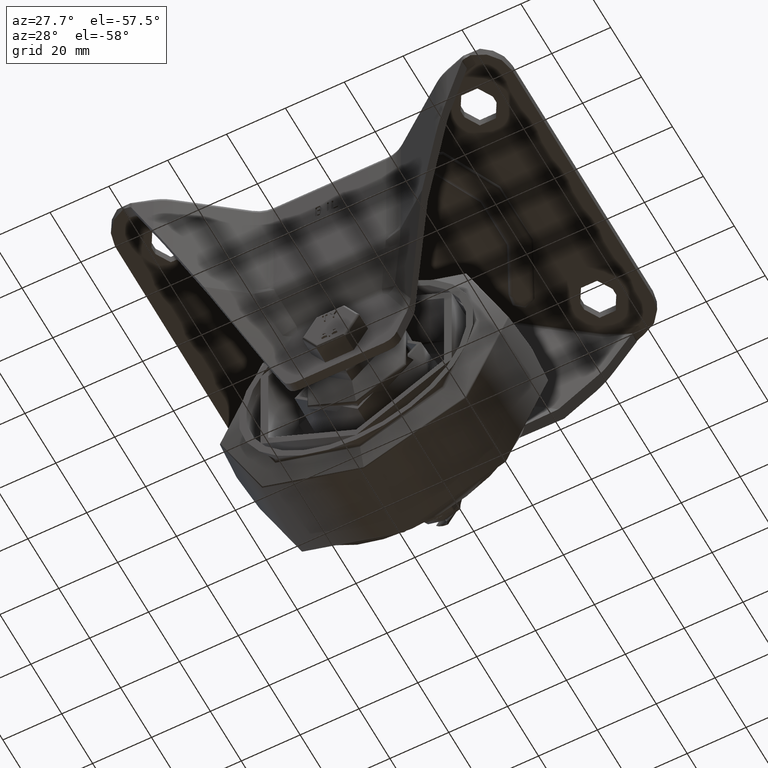
[diagram: clean part render]
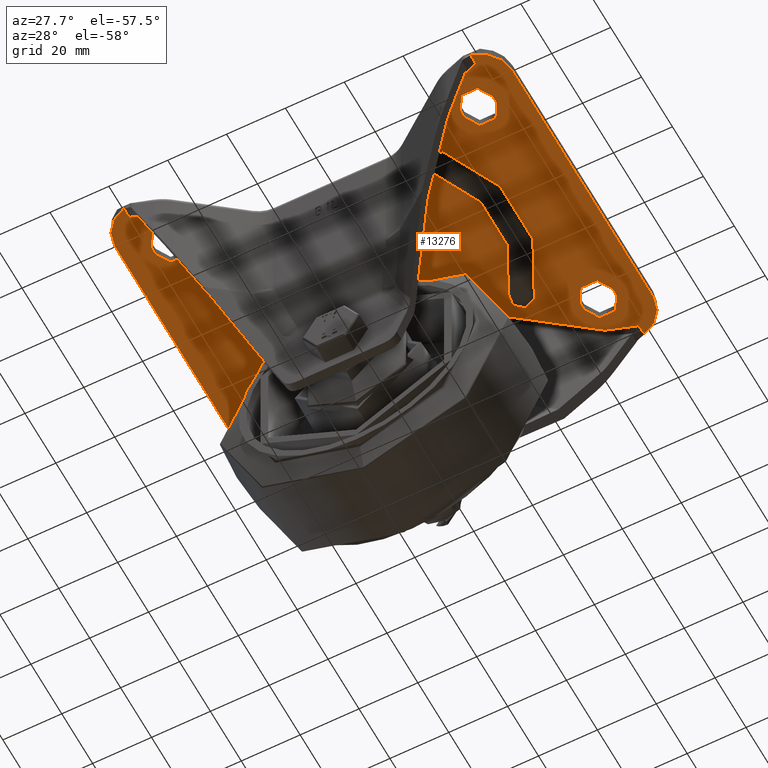
[diagram: same view with one face highlighted and labeled with its STEP entity id]
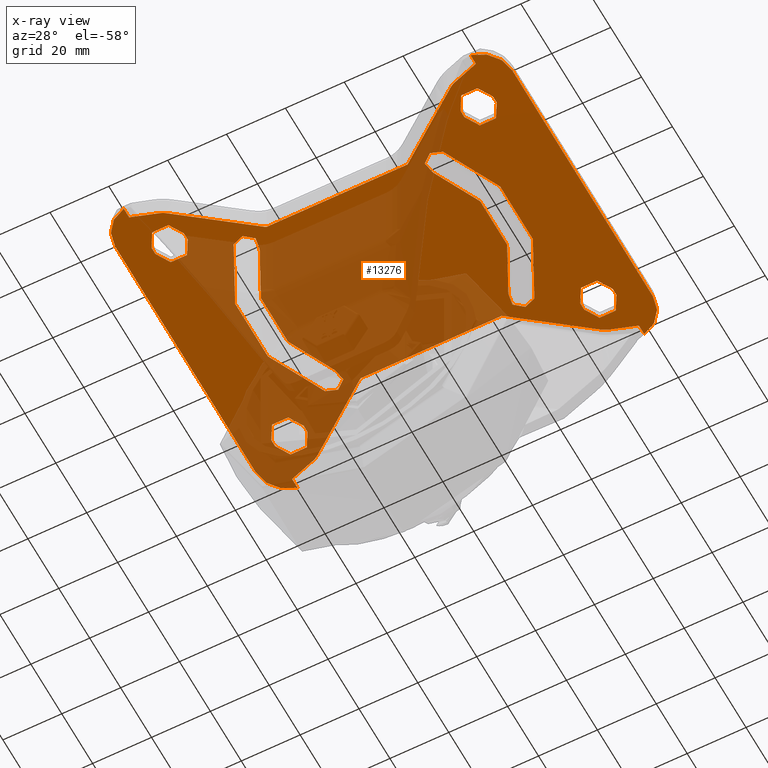
[diagram: x-ray of the same camera — body ghosted, the highlighted face saturated]
A machine part, auxiliary view. The second image highlights one B-rep face of the part: STEP entity #13276.
The next image is the same camera in x-ray: the body ghosted, the highlighted face saturated — about 47% of this face is hidden behind the body in this view.
In plain terms, the highlighted planar face has unit normal (0, 0, 1).
Its self-contained STEP definition (entity closure, byte-faithful):
#238=FACE_BOUND('',#2536,.T.);
#239=FACE_BOUND('',#2537,.T.);
#240=FACE_BOUND('',#2538,.T.);
#241=FACE_BOUND('',#2539,.T.);
#242=FACE_BOUND('',#2540,.T.);
#243=FACE_BOUND('',#2541,.T.);
#642=PLANE('',#14398);
#1717=FACE_OUTER_BOUND('',#2535,.T.);
#2535=EDGE_LOOP('',(#9426,#9427,#9428,#9429,#9430,#9431,#9432,#9433,#9434,
#9435,#9436,#9437,#9438,#9439,#9440,#9441,#9442,#9443,#9444,#9445,#9446,
#9447,#9448,#9449));
#2536=EDGE_LOOP('',(#9450,#9451,#9452,#9453));
#2537=EDGE_LOOP('',(#9454,#9455,#9456,#9457));
#2538=EDGE_LOOP('',(#9458,#9459,#9460,#9461));
#2539=EDGE_LOOP('',(#9462,#9463,#9464,#9465));
#2540=EDGE_LOOP('',(#9466,#9467,#9468,#9469));
#2541=EDGE_LOOP('',(#9470,#9471,#9472,#9473));
#3394=LINE('',#18599,#4253);
#3396=LINE('',#18606,#4255);
#3401=LINE('',#18656,#4260);
#3407=LINE('',#18689,#4266);
#3410=LINE('',#18708,#4269);
#3441=LINE('',#18923,#4300);
#3443=LINE('',#18929,#4302);
#3450=LINE('',#18984,#4309);
#3456=LINE('',#19017,#4315);
#3457=LINE('',#19032,#4316);
#3487=LINE('',#19335,#4346);
#3489=LINE('',#19342,#4348);
#3492=LINE('',#19354,#4351);
#3494=LINE('',#19361,#4353);
#3563=LINE('',#19834,#4422);
#3564=LINE('',#19837,#4423);
#3565=LINE('',#19842,#4424);
#3566=LINE('',#19845,#4425);
#3567=LINE('',#19850,#4426);
#3568=LINE('',#19853,#4427);
#3569=LINE('',#19858,#4428);
#3570=LINE('',#19861,#4429);
#3571=LINE('',#19866,#4430);
#3572=LINE('',#19869,#4431);
#4253=VECTOR('',#15363,1000.);
#4255=VECTOR('',#15371,1000.);
#4260=VECTOR('',#15394,1000.);
#4266=VECTOR('',#15416,1000.);
#4269=VECTOR('',#15425,1000.);
#4300=VECTOR('',#15554,1000.);
#4302=VECTOR('',#15562,1000.);
#4309=VECTOR('',#15591,1000.);
#4315=VECTOR('',#15613,1000.);
#4316=VECTOR('',#15616,1000.);
#4346=VECTOR('',#15872,1000.);
#4348=VECTOR('',#15880,1000.);
#4351=VECTOR('',#15893,1000.);
#4353=VECTOR('',#15901,1000.);
#4422=VECTOR('',#16020,1000.);
#4423=VECTOR('',#16025,1000.);
#4424=VECTOR('',#16028,1000.);
#4425=VECTOR('',#16031,1000.);
#4426=VECTOR('',#16034,1000.);
#4427=VECTOR('',#16037,1000.);
#4428=VECTOR('',#16040,1000.);
#4429=VECTOR('',#16043,1000.);
#4430=VECTOR('',#16046,1000.);
#4431=VECTOR('',#16049,1000.);
#5138=CIRCLE('',#14217,11.);
#5140=CIRCLE('',#14220,11.);
#5172=CIRCLE('',#14290,11.);
#5174=CIRCLE('',#14293,11.);
#5205=CIRCLE('',#14335,46.25);
#5207=CIRCLE('',#14338,4.);
#5210=CIRCLE('',#14342,38.25);
#5213=CIRCLE('',#14346,4.);
#5215=CIRCLE('',#14349,46.25);
#5221=CIRCLE('',#14356,4.);
#5224=CIRCLE('',#14360,38.25);
#5226=CIRCLE('',#14363,4.);
#5231=CIRCLE('',#14399,7.5);
#5232=CIRCLE('',#14400,7.5);
#5233=CIRCLE('',#14401,7.5);
#5234=CIRCLE('',#14402,7.5);
#5235=CIRCLE('',#14403,5.5);
#5236=CIRCLE('',#14404,5.5);
#5237=CIRCLE('',#14405,5.5);
#5238=CIRCLE('',#14406,5.5);
#5239=CIRCLE('',#14407,5.5);
#5240=CIRCLE('',#14408,5.5);
#5241=CIRCLE('',#14409,5.5);
#5242=CIRCLE('',#14410,5.5);
#5618=VERTEX_POINT('',#18594);
#5619=VERTEX_POINT('',#18597);
#5621=VERTEX_POINT('',#18604);
#5631=VERTEX_POINT('',#18653);
#5639=VERTEX_POINT('',#18676);
#5641=VERTEX_POINT('',#18688);
#5642=VERTEX_POINT('',#18693);
#5644=VERTEX_POINT('',#18706);
#5688=VERTEX_POINT('',#18869);
#5689=VERTEX_POINT('',#18871);
#5693=VERTEX_POINT('',#18888);
#5694=VERTEX_POINT('',#18897);
#5704=VERTEX_POINT('',#18920);
#5705=VERTEX_POINT('',#18922);
#5706=VERTEX_POINT('',#18928);
#5717=VERTEX_POINT('',#18979);
#5725=VERTEX_POINT('',#19002);
#5727=VERTEX_POINT('',#19015);
#5728=VERTEX_POINT('',#19019);
#5730=VERTEX_POINT('',#19031);
#5775=VERTEX_POINT('',#19197);
#5776=VERTEX_POINT('',#19206);
#5778=VERTEX_POINT('',#19212);
#5779=VERTEX_POINT('',#19214);
#5803=VERTEX_POINT('',#19290);
#5804=VERTEX_POINT('',#19292);
#5805=VERTEX_POINT('',#19296);
#5807=VERTEX_POINT('',#19302);
#5809=VERTEX_POINT('',#19311);
#5810=VERTEX_POINT('',#19312);
#5814=VERTEX_POINT('',#19322);
#5816=VERTEX_POINT('',#19328);
#5888=VERTEX_POINT('',#19838);
#5889=VERTEX_POINT('',#19839);
#5890=VERTEX_POINT('',#19841);
#5891=VERTEX_POINT('',#19843);
#5892=VERTEX_POINT('',#19846);
#5893=VERTEX_POINT('',#19847);
#5894=VERTEX_POINT('',#19849);
#5895=VERTEX_POINT('',#19851);
#5896=VERTEX_POINT('',#19854);
#5897=VERTEX_POINT('',#19855);
#5898=VERTEX_POINT('',#19857);
#5899=VERTEX_POINT('',#19859);
#5900=VERTEX_POINT('',#19862);
#5901=VERTEX_POINT('',#19863);
#5902=VERTEX_POINT('',#19865);
#5903=VERTEX_POINT('',#19867);
#6941=EDGE_CURVE('',#5619,#5618,#3394,.T.);
#6945=EDGE_CURVE('',#5621,#5619,#3396,.T.);
#6959=EDGE_CURVE('',#5631,#5621,#3401,.T.);
#6971=EDGE_CURVE('',#5641,#5639,#3407,.T.);
#6977=EDGE_CURVE('',#5644,#5642,#3410,.T.);
#7032=EDGE_CURVE('',#5688,#5689,#5138,.T.);
#7038=EDGE_CURVE('',#5694,#5693,#5140,.T.);
#7049=EDGE_CURVE('',#5705,#5704,#3441,.T.);
#7053=EDGE_CURVE('',#5706,#5705,#3443,.T.);
#7071=EDGE_CURVE('',#5717,#5706,#3450,.T.);
#7083=EDGE_CURVE('',#5725,#5727,#3456,.T.);
#7085=EDGE_CURVE('',#5728,#5730,#3457,.T.);
#7143=EDGE_CURVE('',#5776,#5775,#5172,.T.);
#7147=EDGE_CURVE('',#5778,#5779,#5174,.T.);
#7182=EDGE_CURVE('',#5804,#5803,#5205,.T.);
#7184=EDGE_CURVE('',#5803,#5805,#5207,.T.);
#7187=EDGE_CURVE('',#5805,#5807,#5210,.T.);
#7190=EDGE_CURVE('',#5807,#5804,#5213,.T.);
#7192=EDGE_CURVE('',#5809,#5810,#5215,.T.);
#7198=EDGE_CURVE('',#5810,#5814,#5221,.T.);
#7201=EDGE_CURVE('',#5814,#5816,#5224,.T.);
#7203=EDGE_CURVE('',#5816,#5809,#5226,.T.);
#7204=EDGE_CURVE('',#5725,#5775,#3487,.T.);
#7208=EDGE_CURVE('',#5779,#5728,#3489,.T.);
#7215=EDGE_CURVE('',#5689,#5639,#3492,.T.);
#7219=EDGE_CURVE('',#5642,#5693,#3494,.T.);
#7314=EDGE_CURVE('',#5618,#5644,#5231,.T.);
#7315=EDGE_CURVE('',#5641,#5631,#5232,.T.);
#7316=EDGE_CURVE('',#5776,#5688,#3563,.T.);
#7317=EDGE_CURVE('',#5727,#5717,#5233,.T.);
#7318=EDGE_CURVE('',#5704,#5730,#5234,.T.);
#7319=EDGE_CURVE('',#5694,#5778,#3564,.T.);
#7320=EDGE_CURVE('',#5888,#5889,#5235,.T.);
#7321=EDGE_CURVE('',#5889,#5890,#3565,.T.);
#7322=EDGE_CURVE('',#5890,#5891,#5236,.T.);
#7323=EDGE_CURVE('',#5891,#5888,#3566,.T.);
#7324=EDGE_CURVE('',#5892,#5893,#5237,.T.);
#7325=EDGE_CURVE('',#5894,#5892,#3567,.T.);
#7326=EDGE_CURVE('',#5895,#5894,#5238,.T.);
#7327=EDGE_CURVE('',#5893,#5895,#3568,.T.);
#7328=EDGE_CURVE('',#5896,#5897,#5239,.T.);
#7329=EDGE_CURVE('',#5898,#5896,#3569,.T.);
#7330=EDGE_CURVE('',#5899,#5898,#5240,.T.);
#7331=EDGE_CURVE('',#5897,#5899,#3570,.T.);
#7332=EDGE_CURVE('',#5900,#5901,#5241,.T.);
#7333=EDGE_CURVE('',#5901,#5902,#3571,.T.);
#7334=EDGE_CURVE('',#5902,#5903,#5242,.T.);
#7335=EDGE_CURVE('',#5903,#5900,#3572,.T.);
#9426=ORIENTED_EDGE('',*,*,#7219,.F.);
#9427=ORIENTED_EDGE('',*,*,#6977,.F.);
#9428=ORIENTED_EDGE('',*,*,#7314,.F.);
#9429=ORIENTED_EDGE('',*,*,#6941,.F.);
#9430=ORIENTED_EDGE('',*,*,#6945,.F.);
#9431=ORIENTED_EDGE('',*,*,#6959,.F.);
#9432=ORIENTED_EDGE('',*,*,#7315,.F.);
#9433=ORIENTED_EDGE('',*,*,#6971,.T.);
#9434=ORIENTED_EDGE('',*,*,#7215,.F.);
#9435=ORIENTED_EDGE('',*,*,#7032,.F.);
#9436=ORIENTED_EDGE('',*,*,#7316,.F.);
#9437=ORIENTED_EDGE('',*,*,#7143,.T.);
#9438=ORIENTED_EDGE('',*,*,#7204,.F.);
#9439=ORIENTED_EDGE('',*,*,#7083,.T.);
#9440=ORIENTED_EDGE('',*,*,#7317,.T.);
#9441=ORIENTED_EDGE('',*,*,#7071,.T.);
#9442=ORIENTED_EDGE('',*,*,#7053,.T.);
#9443=ORIENTED_EDGE('',*,*,#7049,.T.);
#9444=ORIENTED_EDGE('',*,*,#7318,.T.);
#9445=ORIENTED_EDGE('',*,*,#7085,.F.);
#9446=ORIENTED_EDGE('',*,*,#7208,.F.);
#9447=ORIENTED_EDGE('',*,*,#7147,.F.);
#9448=ORIENTED_EDGE('',*,*,#7319,.F.);
#9449=ORIENTED_EDGE('',*,*,#7038,.T.);
#9450=ORIENTED_EDGE('',*,*,#7190,.T.);
#9451=ORIENTED_EDGE('',*,*,#7182,.T.);
#9452=ORIENTED_EDGE('',*,*,#7184,.T.);
#9453=ORIENTED_EDGE('',*,*,#7187,.T.);
#9454=ORIENTED_EDGE('',*,*,#7198,.T.);
#9455=ORIENTED_EDGE('',*,*,#7201,.T.);
#9456=ORIENTED_EDGE('',*,*,#7203,.T.);
#9457=ORIENTED_EDGE('',*,*,#7192,.T.);
#9458=ORIENTED_EDGE('',*,*,#7320,.T.);
#9459=ORIENTED_EDGE('',*,*,#7321,.T.);
#9460=ORIENTED_EDGE('',*,*,#7322,.T.);
#9461=ORIENTED_EDGE('',*,*,#7323,.T.);
#9462=ORIENTED_EDGE('',*,*,#7324,.F.);
#9463=ORIENTED_EDGE('',*,*,#7325,.F.);
#9464=ORIENTED_EDGE('',*,*,#7326,.F.);
#9465=ORIENTED_EDGE('',*,*,#7327,.F.);
#9466=ORIENTED_EDGE('',*,*,#7328,.F.);
#9467=ORIENTED_EDGE('',*,*,#7329,.F.);
#9468=ORIENTED_EDGE('',*,*,#7330,.F.);
#9469=ORIENTED_EDGE('',*,*,#7331,.F.);
#9470=ORIENTED_EDGE('',*,*,#7332,.T.);
#9471=ORIENTED_EDGE('',*,*,#7333,.T.);
#9472=ORIENTED_EDGE('',*,*,#7334,.T.);
#9473=ORIENTED_EDGE('',*,*,#7335,.T.);
#13276=ADVANCED_FACE('',(#1717,#238,#239,#240,#241,#242,#243),#642,.F.);
#14217=AXIS2_PLACEMENT_3D('',#18872,#15523,#15524);
#14220=AXIS2_PLACEMENT_3D('',#18898,#15531,#15532);
#14290=AXIS2_PLACEMENT_3D('',#19207,#15717,#15718);
#14293=AXIS2_PLACEMENT_3D('',#19215,#15725,#15726);
#14335=AXIS2_PLACEMENT_3D('',#19293,#15812,#15813);
#14338=AXIS2_PLACEMENT_3D('',#19297,#15818,#15819);
#14342=AXIS2_PLACEMENT_3D('',#19303,#15826,#15827);
#14346=AXIS2_PLACEMENT_3D('',#19308,#15834,#15835);
#14349=AXIS2_PLACEMENT_3D('',#19313,#15840,#15841);
#14356=AXIS2_PLACEMENT_3D('',#19324,#15854,#15855);
#14360=AXIS2_PLACEMENT_3D('',#19330,#15862,#15863);
#14363=AXIS2_PLACEMENT_3D('',#19333,#15868,#15869);
#14398=AXIS2_PLACEMENT_3D('',#19831,#16014,#16015);
#14399=AXIS2_PLACEMENT_3D('',#19832,#16016,#16017);
#14400=AXIS2_PLACEMENT_3D('',#19833,#16018,#16019);
#14401=AXIS2_PLACEMENT_3D('',#19835,#16021,#16022);
#14402=AXIS2_PLACEMENT_3D('',#19836,#16023,#16024);
#14403=AXIS2_PLACEMENT_3D('',#19840,#16026,#16027);
#14404=AXIS2_PLACEMENT_3D('',#19844,#16029,#16030);
#14405=AXIS2_PLACEMENT_3D('',#19848,#16032,#16033);
#14406=AXIS2_PLACEMENT_3D('',#19852,#16035,#16036);
#14407=AXIS2_PLACEMENT_3D('',#19856,#16038,#16039);
#14408=AXIS2_PLACEMENT_3D('',#19860,#16041,#16042);
#14409=AXIS2_PLACEMENT_3D('',#19864,#16044,#16045);
#14410=AXIS2_PLACEMENT_3D('',#19868,#16047,#16048);
#15363=DIRECTION('',(0.798041368930957,-0.602602666335625,0.));
#15371=DIRECTION('',(1.,0.,0.));
#15394=DIRECTION('',(0.798041368930957,0.602602666335625,0.));
#15416=DIRECTION('',(-0.948683298050512,-0.316227766016842,0.));
#15425=DIRECTION('',(0.948683298050512,-0.316227766016842,0.));
#15523=DIRECTION('center_axis',(0.,0.,1.));
#15524=DIRECTION('ref_axis',(-0.707106781186547,-0.707106781186548,0.));
#15531=DIRECTION('center_axis',(0.,0.,-1.));
#15532=DIRECTION('ref_axis',(0.707106781186547,-0.707106781186548,0.));
#15554=DIRECTION('',(0.798041368930957,0.602602666335625,0.));
#15562=DIRECTION('',(1.,0.,0.));
#15591=DIRECTION('',(0.798041368930957,-0.602602666335625,0.));
#15613=DIRECTION('',(0.948683298050512,-0.316227766016842,0.));
#15616=DIRECTION('',(-0.948683298050512,-0.316227766016842,0.));
#15717=DIRECTION('center_axis',(0.,0.,-1.));
#15718=DIRECTION('ref_axis',(-0.707106781186547,0.707106781186548,0.));
#15725=DIRECTION('center_axis',(0.,0.,1.));
#15726=DIRECTION('ref_axis',(0.707106781186547,0.707106781186548,0.));
#15812=DIRECTION('center_axis',(0.,0.,1.));
#15813=DIRECTION('ref_axis',(1.,-2.44929359829471E-16,0.));
#15818=DIRECTION('center_axis',(0.,0.,1.));
#15819=DIRECTION('ref_axis',(-0.639053254437868,0.769162491280204,0.));
#15826=DIRECTION('center_axis',(0.,0.,-1.));
#15827=DIRECTION('ref_axis',(1.,-2.44929359829471E-16,0.));
#15834=DIRECTION('center_axis',(0.,0.,1.));
#15835=DIRECTION('ref_axis',(-0.63905325443787,-0.769162491280202,0.));
#15840=DIRECTION('center_axis',(0.,0.,1.));
#15841=DIRECTION('ref_axis',(-1.,-3.21624529935327E-16,0.));
#15854=DIRECTION('center_axis',(0.,0.,1.));
#15855=DIRECTION('ref_axis',(0.639053254437871,-0.769162491280201,0.));
#15862=DIRECTION('center_axis',(0.,0.,-1.));
#15863=DIRECTION('ref_axis',(-1.,-3.21624529935327E-16,0.));
#15868=DIRECTION('center_axis',(0.,0.,1.));
#15869=DIRECTION('ref_axis',(0.63905325443787,0.769162491280202,0.));
#15872=DIRECTION('',(0.,1.,0.));
#15880=DIRECTION('',(0.,-1.,0.));
#15893=DIRECTION('',(0.,1.,0.));
#15901=DIRECTION('',(0.,-1.,0.));
#16014=DIRECTION('center_axis',(0.,0.,1.));
#16015=DIRECTION('ref_axis',(1.,0.,0.));
#16016=DIRECTION('center_axis',(0.,0.,1.));
#16017=DIRECTION('ref_axis',(-0.46554869622465,-0.885022266072175,0.));
#16018=DIRECTION('center_axis',(0.,0.,1.));
#16019=DIRECTION('ref_axis',(0.46554869622465,-0.885022266072176,0.));
#16020=DIRECTION('',(0.,-1.,0.));
#16021=DIRECTION('center_axis',(0.,0.,-1.));
#16022=DIRECTION('ref_axis',(0.46554869622465,0.885022266072176,0.));
#16023=DIRECTION('center_axis',(0.,0.,-1.));
#16024=DIRECTION('ref_axis',(-0.46554869622465,0.885022266072175,0.));
#16025=DIRECTION('',(0.,1.,0.));
#16026=DIRECTION('center_axis',(0.,0.,1.));
#16027=DIRECTION('ref_axis',(1.,0.,0.));
#16028=DIRECTION('',(0.,-1.,0.));
#16029=DIRECTION('center_axis',(0.,0.,1.));
#16030=DIRECTION('ref_axis',(1.,0.,0.));
#16031=DIRECTION('',(0.,1.,0.));
#16032=DIRECTION('center_axis',(0.,0.,-1.));
#16033=DIRECTION('ref_axis',(-1.,0.,0.));
#16034=DIRECTION('',(0.,1.,0.));
#16035=DIRECTION('center_axis',(0.,0.,-1.));
#16036=DIRECTION('ref_axis',(-1.,0.,0.));
#16037=DIRECTION('',(0.,-1.,0.));
#16038=DIRECTION('center_axis',(0.,0.,-1.));
#16039=DIRECTION('ref_axis',(1.,0.,0.));
#16040=DIRECTION('',(0.,-1.,0.));
#16041=DIRECTION('center_axis',(0.,0.,-1.));
#16042=DIRECTION('ref_axis',(1.,0.,0.));
#16043=DIRECTION('',(0.,1.,0.));
#16044=DIRECTION('center_axis',(0.,0.,1.));
#16045=DIRECTION('ref_axis',(-1.,0.,0.));
#16046=DIRECTION('',(0.,1.,0.));
#16047=DIRECTION('center_axis',(0.,0.,1.));
#16048=DIRECTION('ref_axis',(-1.,0.,0.));
#16049=DIRECTION('',(0.,-1.,0.));
#18594=CARTESIAN_POINT('',(48.143613067655,-48.719521641535,-3.));
#18597=CARTESIAN_POINT('',(24.0095431888433,-30.4958362228403,-3.));
#18599=CARTESIAN_POINT('',(15.459513205689,-24.0396911335197,-3.));
#18604=CARTESIAN_POINT('',(-24.0095431888433,-30.4958362228403,-3.));
#18606=CARTESIAN_POINT('',(8.15320033709099E-14,-30.4958362228403,-3.));
#18653=CARTESIAN_POINT('',(-48.143613067655,-48.719521641535,-3.));
#18656=CARTESIAN_POINT('',(-15.459513205689,-24.0396911335197,-3.));
#18676=CARTESIAN_POINT('',(-58.9132298181293,-52.7232711092929,-3.));
#18688=CARTESIAN_POINT('',(-50.2914248200459,-49.8493361099317,-3.));
#18689=CARTESIAN_POINT('',(-21.6161557756781,-40.2909130951423,-3.));
#18693=CARTESIAN_POINT('',(58.9132298181293,-52.7232711092929,-3.));
#18706=CARTESIAN_POINT('',(50.2914248200459,-49.8493361099317,-3.));
#18708=CARTESIAN_POINT('',(21.6161557756781,-40.2909130951423,-3.));
#18869=CARTESIAN_POINT('',(-67.5,-45.5,-3.));
#18871=CARTESIAN_POINT('',(-58.9132298181293,-56.2320231943885,-3.));
#18872=CARTESIAN_POINT('Origin',(-56.5,-45.5,-3.));
#18888=CARTESIAN_POINT('',(58.9132298181293,-56.2320231943885,-3.));
#18897=CARTESIAN_POINT('',(67.5,-45.5,-3.));
#18898=CARTESIAN_POINT('Origin',(56.5,-45.5,-3.));
#18920=CARTESIAN_POINT('',(48.143613067655,48.719521641535,-3.));
#18922=CARTESIAN_POINT('',(24.0095431888433,30.4958362228403,-3.));
#18923=CARTESIAN_POINT('',(15.459513205689,24.0396911335197,-3.));
#18928=CARTESIAN_POINT('',(-24.0095431888433,30.4958362228403,-3.));
#18929=CARTESIAN_POINT('',(8.15320033709099E-14,30.4958362228403,-3.));
#18979=CARTESIAN_POINT('',(-48.143613067655,48.719521641535,-3.));
#18984=CARTESIAN_POINT('',(-15.459513205689,24.0396911335197,-3.));
#19002=CARTESIAN_POINT('',(-58.9132298181293,52.7232711092929,-3.));
#19015=CARTESIAN_POINT('',(-50.2914248200459,49.8493361099317,-3.));
#19017=CARTESIAN_POINT('',(-21.6161557756781,40.2909130951423,-3.));
#19019=CARTESIAN_POINT('',(58.9132298181293,52.7232711092929,-3.));
#19031=CARTESIAN_POINT('',(50.2914248200459,49.8493361099317,-3.));
#19032=CARTESIAN_POINT('',(21.6161557756781,40.2909130951423,-3.));
#19197=CARTESIAN_POINT('',(-58.9132298181293,56.2320231943885,-3.));
#19206=CARTESIAN_POINT('',(-67.5,45.5,-3.));
#19207=CARTESIAN_POINT('Origin',(-56.5,45.5,-3.));
#19212=CARTESIAN_POINT('',(67.5,45.5,-3.));
#19214=CARTESIAN_POINT('',(58.9132298181293,56.2320231943885,-3.));
#19215=CARTESIAN_POINT('Origin',(56.5,45.5,-3.));
#19290=CARTESIAN_POINT('',(35.5737652217094,29.5562130177515,-3.));
#19292=CARTESIAN_POINT('',(35.5737652217093,-29.5562130177515,-3.));
#19293=CARTESIAN_POINT('Origin',(0.,0.,-3.));
#19296=CARTESIAN_POINT('',(29.4204652914677,24.4437869822485,-3.));
#19297=CARTESIAN_POINT('Origin',(32.4971152565885,27.,-3.));
#19302=CARTESIAN_POINT('',(29.4204652914677,-24.4437869822485,-3.));
#19303=CARTESIAN_POINT('Origin',(0.,0.,-3.));
#19308=CARTESIAN_POINT('Origin',(32.4971152565885,-27.,-3.));
#19311=CARTESIAN_POINT('',(-35.5737652217094,29.5562130177515,-3.));
#19312=CARTESIAN_POINT('',(-35.5737652217093,-29.5562130177515,-3.));
#19313=CARTESIAN_POINT('Origin',(0.,0.,-3.));
#19322=CARTESIAN_POINT('',(-29.4204652914677,-24.4437869822485,-3.));
#19324=CARTESIAN_POINT('Origin',(-32.4971152565885,-27.,-3.));
#19328=CARTESIAN_POINT('',(-29.4204652914677,24.4437869822485,-3.));
#19330=CARTESIAN_POINT('Origin',(0.,0.,-3.));
#19333=CARTESIAN_POINT('Origin',(-32.4971152565885,27.,-3.));
#19335=CARTESIAN_POINT('',(-58.9132298181293,17.7806020334412,-3.));
#19342=CARTESIAN_POINT('',(58.9132298181293,17.7806020334412,-3.));
#19354=CARTESIAN_POINT('',(-58.9132298181293,-17.7806020334412,-3.));
#19361=CARTESIAN_POINT('',(58.9132298181293,-17.7806020334412,-3.));
#19831=CARTESIAN_POINT('Origin',(0.,0.,-3.));
#19832=CARTESIAN_POINT('Origin',(52.6631330651722,-42.7342113745528,-3.));
#19833=CARTESIAN_POINT('Origin',(-52.6631330651722,-42.7342113745528,-3.));
#19834=CARTESIAN_POINT('',(-67.5,0.,-3.));
#19835=CARTESIAN_POINT('Origin',(-52.6631330651722,42.7342113745528,-3.));
#19836=CARTESIAN_POINT('Origin',(52.6631330651722,42.7342113745528,-3.));
#19837=CARTESIAN_POINT('',(67.5,0.,-3.));
#19838=CARTESIAN_POINT('',(-47.,40.,-3.));
#19839=CARTESIAN_POINT('',(-58.,40.,-3.));
#19840=CARTESIAN_POINT('Origin',(-52.5,40.,-3.));
#19841=CARTESIAN_POINT('',(-58.,37.5,-3.));
#19842=CARTESIAN_POINT('',(-58.,19.375,-3.));
#19843=CARTESIAN_POINT('',(-47.,37.5,-3.));
#19844=CARTESIAN_POINT('Origin',(-52.5,37.5,-3.));
#19845=CARTESIAN_POINT('',(-47.,19.375,-3.));
#19846=CARTESIAN_POINT('',(47.,40.,-3.));
#19847=CARTESIAN_POINT('',(58.,40.,-3.));
#19848=CARTESIAN_POINT('Origin',(52.5,40.,-3.));
#19849=CARTESIAN_POINT('',(47.,37.5,-3.));
#19850=CARTESIAN_POINT('',(47.,19.375,-3.));
#19851=CARTESIAN_POINT('',(58.,37.5,-3.));
#19852=CARTESIAN_POINT('Origin',(52.5,37.5,-3.));
#19853=CARTESIAN_POINT('',(58.,19.375,-3.));
#19854=CARTESIAN_POINT('',(-47.,-40.,-3.));
#19855=CARTESIAN_POINT('',(-58.,-40.,-3.));
#19856=CARTESIAN_POINT('Origin',(-52.5,-40.,-3.));
#19857=CARTESIAN_POINT('',(-47.,-37.5,-3.));
#19858=CARTESIAN_POINT('',(-47.,-19.375,-3.));
#19859=CARTESIAN_POINT('',(-58.,-37.5,-3.));
#19860=CARTESIAN_POINT('Origin',(-52.5,-37.5,-3.));
#19861=CARTESIAN_POINT('',(-58.,-19.375,-3.));
#19862=CARTESIAN_POINT('',(47.,-40.,-3.));
#19863=CARTESIAN_POINT('',(58.,-40.,-3.));
#19864=CARTESIAN_POINT('Origin',(52.5,-40.,-3.));
#19865=CARTESIAN_POINT('',(58.,-37.5,-3.));
#19866=CARTESIAN_POINT('',(58.,-19.375,-3.));
#19867=CARTESIAN_POINT('',(47.,-37.5,-3.));
#19868=CARTESIAN_POINT('Origin',(52.5,-37.5,-3.));
#19869=CARTESIAN_POINT('',(47.,-19.375,-3.));